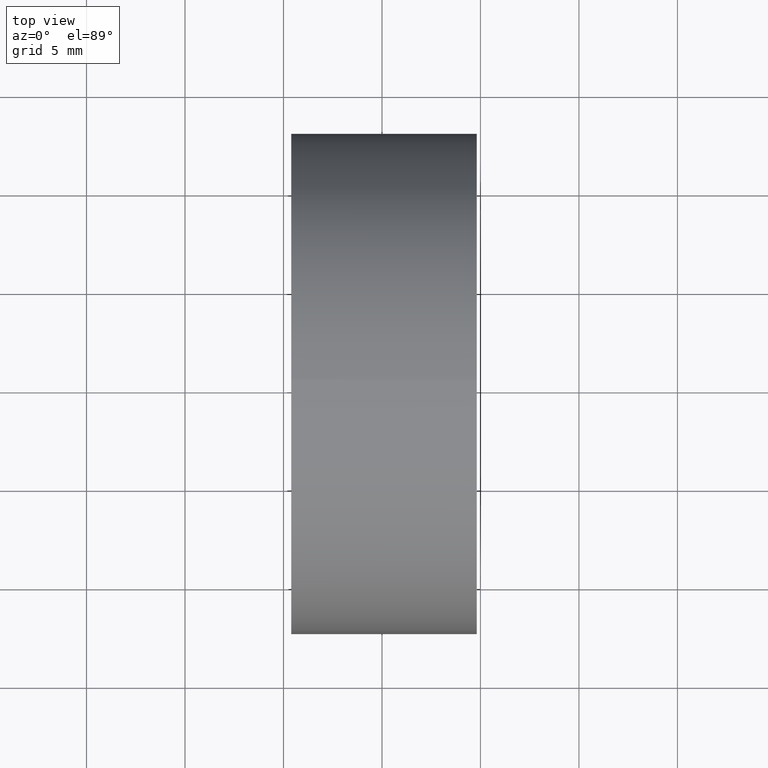
[diagram: clean part render]
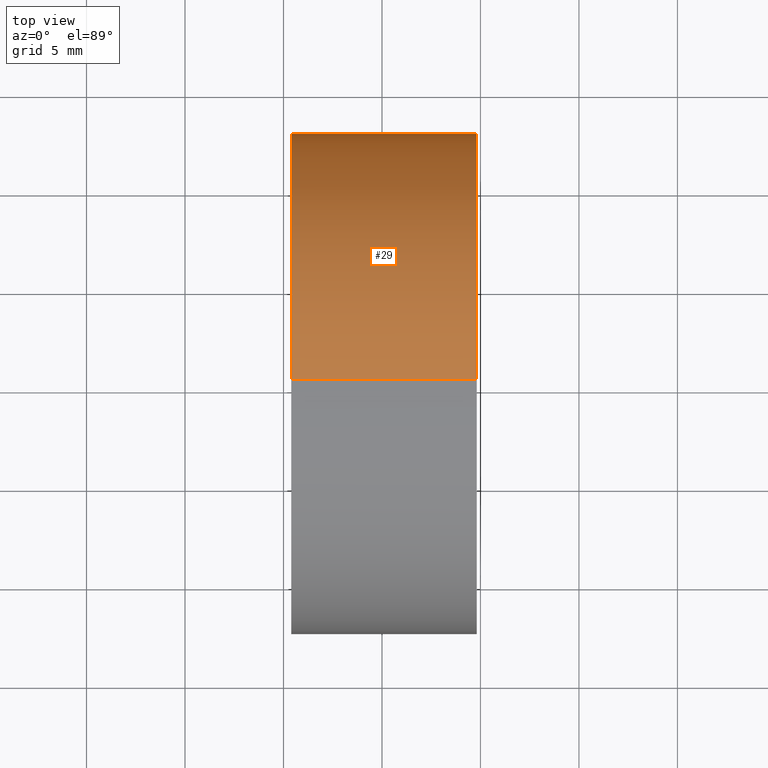
[diagram: same view with one face highlighted and labeled with its STEP entity id]
A machine part, top view. The second image highlights one B-rep face of the part: STEP entity #29.
In plain terms, the highlighted cylindrical surface (partial cylindrical patch) has radius 12.7 mm, axis along (-1, -0, -0).
Its self-contained STEP definition (entity closure, byte-faithful):
#2 = ORIENTED_EDGE ( 'NONE', *, *, #210, .F. ) ;
#5 = LINE ( 'NONE', #185, #155 ) ;
#9 = ORIENTED_EDGE ( 'NONE', *, *, #156, .T. ) ;
#14 = DIRECTION ( 'NONE',  ( -1.000000000000000000, -0.0000000000000000000, -0.0000000000000000000 ) ) ;
#15 = CARTESIAN_POINT ( 'NONE',  ( 115.3941588982569800, 65.22260287298739500, 0.0000000000000000000 ) ) ;
#18 = VERTEX_POINT ( 'NONE', #183 ) ;
#19 = CIRCLE ( 'NONE', #212, 12.69999999999998900 ) ;
#20 = AXIS2_PLACEMENT_3D ( 'NONE', #41, #194, #83 ) ;
#29 = ADVANCED_FACE ( 'NONE', ( #159 ), #162, .T. ) ;
#34 = EDGE_CURVE ( 'NONE', #209, #229, #205, .T. ) ;
#40 = CARTESIAN_POINT ( 'NONE',  ( 109.9369352260864600, 65.22260287298739500, 0.0000000000000000000 ) ) ;
#41 = CARTESIAN_POINT ( 'NONE',  ( 124.8112479942016800, 65.22260287298739500, 0.0000000000000000000 ) ) ;
#42 = DIRECTION ( 'NONE',  ( 0.0000000000000000000, 0.0000000000000000000, 1.000000000000000000 ) ) ;
#43 = CARTESIAN_POINT ( 'NONE',  ( 115.3941588982569800, 65.22260287298739500, -12.69999999999998900 ) ) ;
#55 = ORIENTED_EDGE ( 'NONE', *, *, #138, .F. ) ;
#61 = ORIENTED_EDGE ( 'NONE', *, *, #34, .T. ) ;
#68 = CARTESIAN_POINT ( 'NONE',  ( 109.9369352260864600, 65.22260287298739500, 12.69999999999998900 ) ) ;
#69 = DIRECTION ( 'NONE',  ( 0.0000000000000000000, 0.0000000000000000000, 1.000000000000000000 ) ) ;
#72 = DIRECTION ( 'NONE',  ( -1.000000000000000000, -0.0000000000000000000, -0.0000000000000000000 ) ) ;
#82 = AXIS2_PLACEMENT_3D ( 'NONE', #40, #168, #42 ) ;
#83 = DIRECTION ( 'NONE',  ( 0.0000000000000000000, 0.0000000000000000000, 1.000000000000000000 ) ) ;
#86 = CARTESIAN_POINT ( 'NONE',  ( 124.8112479942016800, 65.22260287298739500, 12.69999999999998900 ) ) ;
#87 = DIRECTION ( 'NONE',  ( -1.000000000000000000, -0.0000000000000000000, -0.0000000000000000000 ) ) ;
#88 = CARTESIAN_POINT ( 'NONE',  ( 124.8112479942016800, 65.22260287298739500, 0.0000000000000000000 ) ) ;
#90 = CARTESIAN_POINT ( 'NONE',  ( 115.3941588982569800, 65.22260287298739500, 0.0000000000000000000 ) ) ;
#97 = VERTEX_POINT ( 'NONE', #43 ) ;
#110 = LINE ( 'NONE', #68, #121 ) ;
#119 = DIRECTION ( 'NONE',  ( 0.0000000000000000000, 0.0000000000000000000, 1.000000000000000000 ) ) ;
#121 = VECTOR ( 'NONE', #196, 1000.000000000000000 ) ;
#122 = ORIENTED_EDGE ( 'NONE', *, *, #163, .T. ) ;
#125 = EDGE_CURVE ( 'NONE', #18, #97, #19, .T. ) ;
#132 = CARTESIAN_POINT ( 'NONE',  ( 124.8112479942016800, 65.22260287298739500, -12.69999999999998900 ) ) ;
#138 = EDGE_CURVE ( 'NONE', #209, #164, #110, .T. ) ;
#140 = CIRCLE ( 'NONE', #161, 12.69999999999998900 ) ;
#145 = DIRECTION ( 'NONE',  ( 0.0000000000000000000, 0.0000000000000000000, 1.000000000000000000 ) ) ;
#150 = AXIS2_PLACEMENT_3D ( 'NONE', #88, #14, #145 ) ;
#155 = VECTOR ( 'NONE', #87, 1000.000000000000000 ) ;
#156 = EDGE_CURVE ( 'NONE', #229, #167, #207, .T. ) ;
#159 = FACE_OUTER_BOUND ( 'NONE', #200, .T. ) ;
#160 = ORIENTED_EDGE ( 'NONE', *, *, #125, .F. ) ;
#161 = AXIS2_PLACEMENT_3D ( 'NONE', #90, #173, #119 ) ;
#162 = CYLINDRICAL_SURFACE ( 'NONE', #82, 12.69999999999998900 ) ;
#163 = EDGE_CURVE ( 'NONE', #167, #97, #5, .T. ) ;
#164 = VERTEX_POINT ( 'NONE', #214 ) ;
#167 = VERTEX_POINT ( 'NONE', #132 ) ;
#168 = DIRECTION ( 'NONE',  ( -1.000000000000000000, -0.0000000000000000000, -0.0000000000000000000 ) ) ;
#173 = DIRECTION ( 'NONE',  ( -1.000000000000000000, -0.0000000000000000000, -0.0000000000000000000 ) ) ;
#174 = CARTESIAN_POINT ( 'NONE',  ( 124.8112479942016800, 77.92260287298738300, 0.0000000000000000000 ) ) ;
#183 = CARTESIAN_POINT ( 'NONE',  ( 115.3941588982569800, 77.92260287298738300, 0.0000000000000000000 ) ) ;
#185 = CARTESIAN_POINT ( 'NONE',  ( 109.9369352260864600, 65.22260287298739500, -12.69999999999998900 ) ) ;
#194 = DIRECTION ( 'NONE',  ( -1.000000000000000000, -0.0000000000000000000, -0.0000000000000000000 ) ) ;
#196 = DIRECTION ( 'NONE',  ( -1.000000000000000000, -0.0000000000000000000, -0.0000000000000000000 ) ) ;
#200 = EDGE_LOOP ( 'NONE', ( #9, #122, #160, #2, #55, #61 ) ) ;
#205 = CIRCLE ( 'NONE', #20, 12.69999999999998900 ) ;
#207 = CIRCLE ( 'NONE', #150, 12.69999999999998900 ) ;
#209 = VERTEX_POINT ( 'NONE', #86 ) ;
#210 = EDGE_CURVE ( 'NONE', #164, #18, #140, .T. ) ;
#212 = AXIS2_PLACEMENT_3D ( 'NONE', #15, #72, #69 ) ;
#214 = CARTESIAN_POINT ( 'NONE',  ( 115.3941588982569800, 65.22260287298739500, 12.69999999999998900 ) ) ;
#229 = VERTEX_POINT ( 'NONE', #174 ) ;